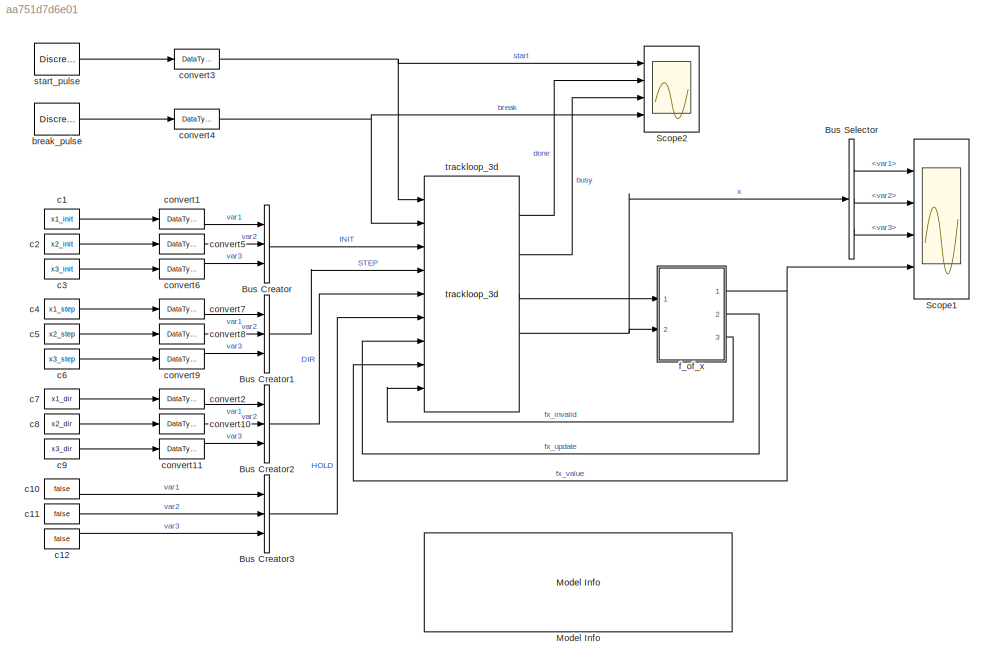
MODEL slx_aa751d7d6e01
KIND model
CONFIG AbsTol = auto
CONFIG EnableMultiTasking = off
CONFIG FixedStep = auto
CONFIG MaxStep = auto
CONFIG MinStep = auto
CONFIG RelTol = 1e-3
CONFIG SampleTimeConstraint = Unconstrained
CONFIG Solver = FixedStepDiscrete
CONFIG SolverName = FixedStepDiscrete
CONFIG StartTime = 0.0
CONFIG StopTime = 10000
BLOCK [BusCreator] Bus Creator
  DisplayOption = bar
  InheritFromInputs = on
  Inputs = 3
  Ports = [3, 1]
BLOCK [BusCreator] Bus Creator1
  DisplayOption = bar
  InheritFromInputs = on
  Inputs = 3
  Ports = [3, 1]
BLOCK [BusCreator] Bus Creator2
  DisplayOption = bar
  InheritFromInputs = on
  Inputs = 3
  Ports = [3, 1]
BLOCK [BusCreator] Bus Creator3
  DisplayOption = bar
  InheritFromInputs = on
  Inputs = 3
  Ports = [3, 1]
BLOCK [BusSelector] Bus Selector
  OutputAsBus = off
  OutputSignals = var1,var2,var3
  Ports = [1, 3]
BLOCK [Reference] Model Info  REF=simulink/Model-Wide
Utilities/Model Info
  Ports = []
  SourceBlock = simulink/Model-Wide\nUtilities/Model Info
  SourceProductBaseCode = SL
  SourceProductName = Simulink
  SourceType = CMBlock
BLOCK [Scope] Scope1
  Floating = off
  NumInputPorts = 4
  Ports = [4]
  ScopeSpecificationString = Simulink.scopes.TimeScopeBlockCfg('CurrentConfiguration', extmgr.ConfigurationSet(extmgr.Configuration('Core','General UI',true),extmgr.Configuration('Core','Source UI',true),extmgr.Configuration('Sources','WiredSimulink',true,'DataLoggingVariableName','ScopeData2'),extmgr.Configuration('Visuals','Time Domain',true,'SerializedDisplays',{struct('MinYLimReal','-0.12623','MaxYLimReal','1.13611','YLab...<+3438ch>
BLOCK [Scope] Scope2
  Floating = off
  NumInputPorts = 4
  Ports = [4]
  ScopeSpecificationString = Simulink.scopes.TimeScopeBlockCfg('CurrentConfiguration', extmgr.ConfigurationSet(extmgr.Configuration('Core','General UI',true),extmgr.Configuration('Core','Source UI',true),extmgr.Configuration('Sources','WiredSimulink',true,'DataLoggingVariableName','ScopeData1'),extmgr.Configuration('Visuals','Time Domain',true,'SerializedDisplays',{struct('MinYLimReal','-0.125','MaxYLimReal','1.125','YLabelRe...<+3416ch>
BLOCK [DiscretePulseGenerator] break_pulse
  Period = 1e6
  PhaseDelay = 9000
  Ports = [0, 1]
BLOCK [Constant] c1
  SampleTime = 1
  Value = x1_init
BLOCK [Constant] c10
  SampleTime = 1
  Value = false
BLOCK [Constant] c11
  SampleTime = 1
  Value = false
BLOCK [Constant] c12
  SampleTime = 1
  Value = false
BLOCK [Constant] c2
  SampleTime = 1
  Value = x2_init
BLOCK [Constant] c3
  SampleTime = 1
  Value = x3_init
BLOCK [Constant] c4
  SampleTime = 1
  Value = x1_step
BLOCK [Constant] c5
  SampleTime = 1
  Value = x2_step
BLOCK [Constant] c6
  SampleTime = 1
  Value = x3_step
BLOCK [Constant] c7
  SampleTime = 1
  Value = x1_dir
BLOCK [Constant] c8
  SampleTime = 1
  Value = x2_dir
BLOCK [Constant] c9
  SampleTime = 1
  Value = x3_dir
BLOCK [DataTypeConversion] convert1
  OutDataTypeStr = x1_nt
  RndMeth = Floor
  SaturateOnIntegerOverflow = off
BLOCK [DataTypeConversion] convert10
  OutDataTypeStr = fixdt(1,2,0)
  RndMeth = Floor
  SaturateOnIntegerOverflow = off
BLOCK [DataTypeConversion] convert11
  OutDataTypeStr = fixdt(1,2,0)
  RndMeth = Floor
  SaturateOnIntegerOverflow = off
BLOCK [DataTypeConversion] convert2
  OutDataTypeStr = fixdt(1,2,0)
  RndMeth = Floor
  SaturateOnIntegerOverflow = off
BLOCK [DataTypeConversion] convert3
  OutDataTypeStr = boolean
  RndMeth = Floor
  SaturateOnIntegerOverflow = off
BLOCK [DataTypeConversion] convert4
  OutDataTypeStr = boolean
  RndMeth = Floor
  SaturateOnIntegerOverflow = off
BLOCK [DataTypeConversion] convert5
  OutDataTypeStr = x2_nt
  RndMeth = Floor
  SaturateOnIntegerOverflow = off
BLOCK [DataTypeConversion] convert6
  OutDataTypeStr = x3_nt
  RndMeth = Floor
  SaturateOnIntegerOverflow = off
BLOCK [DataTypeConversion] convert7
  OutDataTypeStr = x1_nt
  RndMeth = Floor
  SaturateOnIntegerOverflow = off
BLOCK [DataTypeConversion] convert8
  OutDataTypeStr = x2_nt
  RndMeth = Floor
  SaturateOnIntegerOverflow = off
BLOCK [DataTypeConversion] convert9
  OutDataTypeStr = x3_nt
  RndMeth = Floor
  SaturateOnIntegerOverflow = off
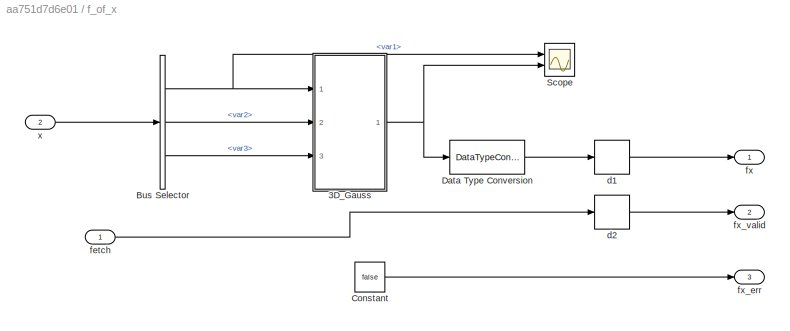
BLOCK [SubSystem] f_of_x
  Ports = [2, 3]
  RequestExecContextInheritance = off
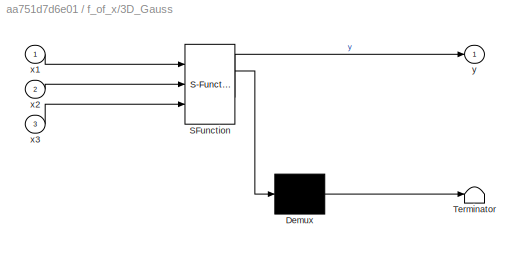
BLOCK [SubSystem] f_of_x/3D_Gauss
  ErrorFcn = Stateflow.Translate.translate
  PermitHierarchicalResolution = ExplicitOnly
  Ports = [3, 1]
  RequestExecContextInheritance = off
  SFBlockType = MATLAB Function
  TreatAsAtomicUnit = on
BLOCK [Demux] f_of_x/3D_Gauss/ Demux 
  Outputs = 1
  Ports = [1, 1]
BLOCK [S-Function] f_of_x/3D_Gauss/ SFunction 
  EnableBusSupport = on
  FunctionName = sf_sfun
  Parameters = c1,c2,c3,m1,m2,m3,s1,s2,s3
  PortCounts = [3 2]
  Ports = [3, 2]
  SFcnIsStateOwnerBlock = off
  SFunctionDeploymentMode = off
  Tag = Stateflow S-Function 2
BLOCK [Terminator] f_of_x/3D_Gauss/ Terminator 
BLOCK [Inport] f_of_x/3D_Gauss/x1
  IconDisplay = Port number
BLOCK [Inport] f_of_x/3D_Gauss/x2
  IconDisplay = Port number
  Port = 2
BLOCK [Inport] f_of_x/3D_Gauss/x3
  IconDisplay = Port number
  Port = 3
BLOCK [Outport] f_of_x/3D_Gauss/y
  IconDisplay = Port number
BLOCK [BusSelector] f_of_x/Bus Selector
  OutputAsBus = off
  OutputSignals = var1,var2,var3
  Ports = [1, 3]
BLOCK [Constant] f_of_x/Constant
  SampleTime = -1
  Value = false
BLOCK [DataTypeConversion] f_of_x/Data Type Conversion
  OutDataTypeStr = fixdt(1,18,16)
  RndMeth = Floor
  SaturateOnIntegerOverflow = off
BLOCK [Scope] f_of_x/Scope
  Floating = off
  NumInputPorts = 2
  Ports = [2]
  ScopeSpecificationString = Simulink.scopes.TimeScopeBlockCfg('CurrentConfiguration', extmgr.ConfigurationSet(extmgr.Configuration('Core','General UI',true),extmgr.Configuration('Core','Source UI',true),extmgr.Configuration('Sources','WiredSimulink',true,'DataLoggingVariableName','ScopeData1'),extmgr.Configuration('Visuals','Time Domain',true,'SerializedDisplays',{struct('MinYLimReal','-0.16443','MaxYLimReal','1.47986','YLab...<+2015ch>
BLOCK [Delay] f_of_x/d1
  DelayLength = 1
  InitialCondition = 0
  InputPortMap = u0
  Ports = [1, 1]
BLOCK [Delay] f_of_x/d2
  DelayLength = 1
  InitialCondition = 0
  InputPortMap = u0
  Ports = [1, 1]
BLOCK [Inport] f_of_x/fetch
  IconDisplay = Port number
BLOCK [Outport] f_of_x/fx
  IconDisplay = Port number
BLOCK [Outport] f_of_x/fx_err
  IconDisplay = Port number
  Port = 3
BLOCK [Outport] f_of_x/fx_valid
  IconDisplay = Port number
  Port = 2
BLOCK [Inport] f_of_x/x
  IconDisplay = Port number
  Port = 2
BLOCK [DiscretePulseGenerator] start_pulse
  Period = 1e6
  PhaseDelay = 5
  Ports = [0, 1]
BLOCK [Reference] trackloop_3d  REF=lib_dsphdlcontrol_v1/trackloop_3d  (lib defined in slx_169a934beb0a)
  Ports = [9, 5]
  SourceBlock = lib_dsphdlcontrol_v1/trackloop_3d
  SourceProductName = DSPHDL Library
  SourceType = Tracking Loop Controller
LINE Bus Creator1:1 -> trackloop_3d:4
LINE Bus Creator2:1 -> trackloop_3d:5
LINE Bus Creator3:1 -> trackloop_3d:6
LINE Bus Creator:1 -> trackloop_3d:3
LINE Bus Selector:1 -> Scope1:1
LINE Bus Selector:2 -> Scope1:2
LINE Bus Selector:3 -> Scope1:3
LINE break_pulse:1 -> convert4:1
LINE c10:1 -> Bus Creator3:1
LINE c11:1 -> Bus Creator3:2
LINE c12:1 -> Bus Creator3:3
LINE c1:1 -> convert1:1
LINE c2:1 -> convert5:1
LINE c3:1 -> convert6:1
LINE c4:1 -> convert7:1
LINE c5:1 -> convert8:1
LINE c6:1 -> convert9:1
LINE c7:1 -> convert2:1
LINE c8:1 -> convert10:1
LINE c9:1 -> convert11:1
LINE convert10:1 -> Bus Creator2:2
LINE convert11:1 -> Bus Creator2:3
LINE convert1:1 -> Bus Creator:1
LINE convert2:1 -> Bus Creator2:1
NET convert3:1 -> Scope2:1, trackloop_3d:1
NET convert4:1 -> Scope2:4, trackloop_3d:2
LINE convert5:1 -> Bus Creator:2
LINE convert6:1 -> Bus Creator:3
LINE convert7:1 -> Bus Creator1:1
LINE convert8:1 -> Bus Creator1:2
LINE convert9:1 -> Bus Creator1:3
NET f_of_x/3D_Gauss:1 -> f_of_x/Data Type Conversion:1, f_of_x/Scope:2
NET f_of_x/Bus Selector:1 -> f_of_x/3D_Gauss:1, f_of_x/Scope:1
LINE f_of_x/Bus Selector:2 -> f_of_x/3D_Gauss:2
LINE f_of_x/Bus Selector:3 -> f_of_x/3D_Gauss:3
LINE f_of_x/Constant:1 -> f_of_x/fx_err:1
LINE f_of_x/Data Type Conversion:1 -> f_of_x/d1:1
LINE f_of_x/d1:1 -> f_of_x/fx:1
LINE f_of_x/d2:1 -> f_of_x/fx_valid:1
LINE f_of_x/fetch:1 -> f_of_x/d2:1
LINE f_of_x/x:1 -> f_of_x/Bus Selector:1
NET f_of_x:1 -> Scope1:4, trackloop_3d:8
LINE f_of_x:2 -> trackloop_3d:7
LINE f_of_x:3 -> trackloop_3d:9
LINE start_pulse:1 -> convert3:1
LINE trackloop_3d:1 -> Scope2:2
LINE trackloop_3d:2 -> Scope2:3
LINE trackloop_3d:3 -> f_of_x:1
NET trackloop_3d:4 -> Bus Selector:1, f_of_x:2
note: NET lines group one-source signal fan-out (src -> all destinations, sorted); 1:1 wires keep LINE
CHART f_of_x/3D_Gauss states=1 transitions=1
  STATE_LABEL 'eML_blk_kernel()'
  STATE_LABEL 'SCRIPT:\nfunction y = fcn(x1,x2,x3, c1, c2, c3, s1, s2, s3, m1, m2, m3)\n%#codegen\n\n%% 3D Gaussian function\nfx1 = m1 * exp((-(double(x1) - c1).^2)./(2*s1^2));\nfx2 = m2 * exp((-(double(x2) - c2).^2)./(2*s2^2));\nfx3 = m3 * exp((-(double(x3) - c3).^2)./(2*s3^2));\ny = fx1.*fx2.*fx3;\n\n'
